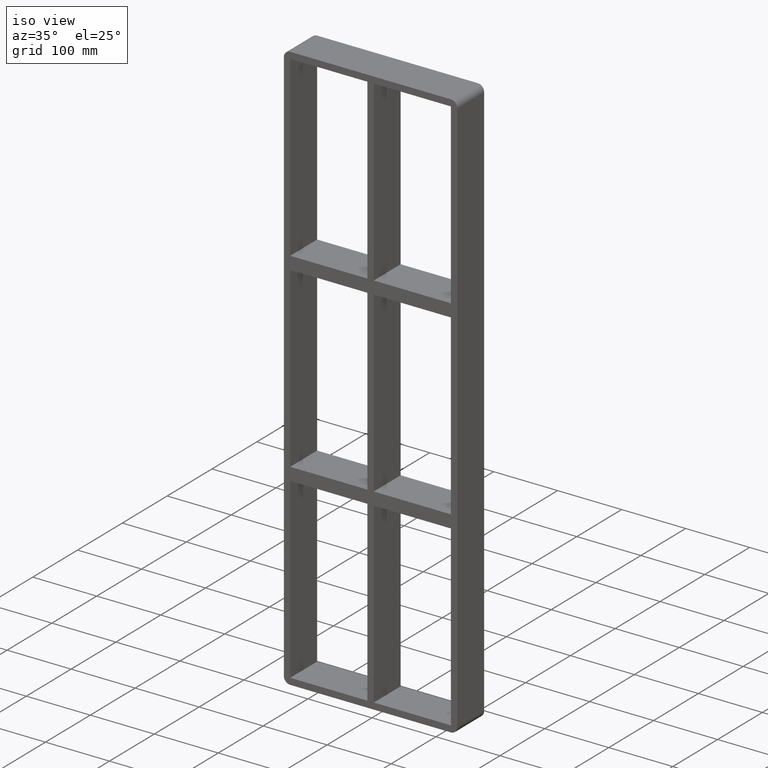
[diagram: clean part render]
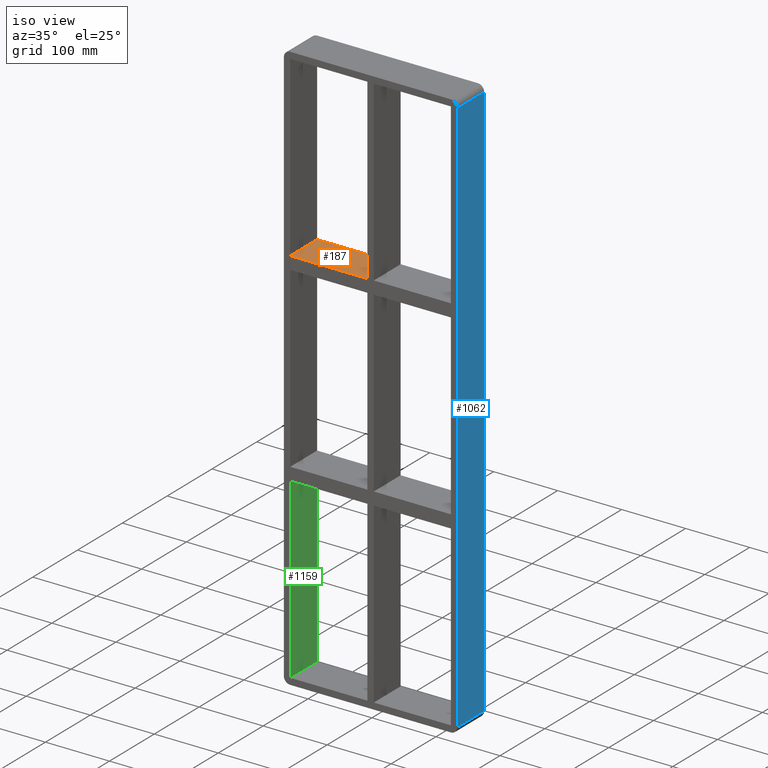
[diagram: same view with three faces highlighted in distinct colors, each labeled with its STEP entity id]
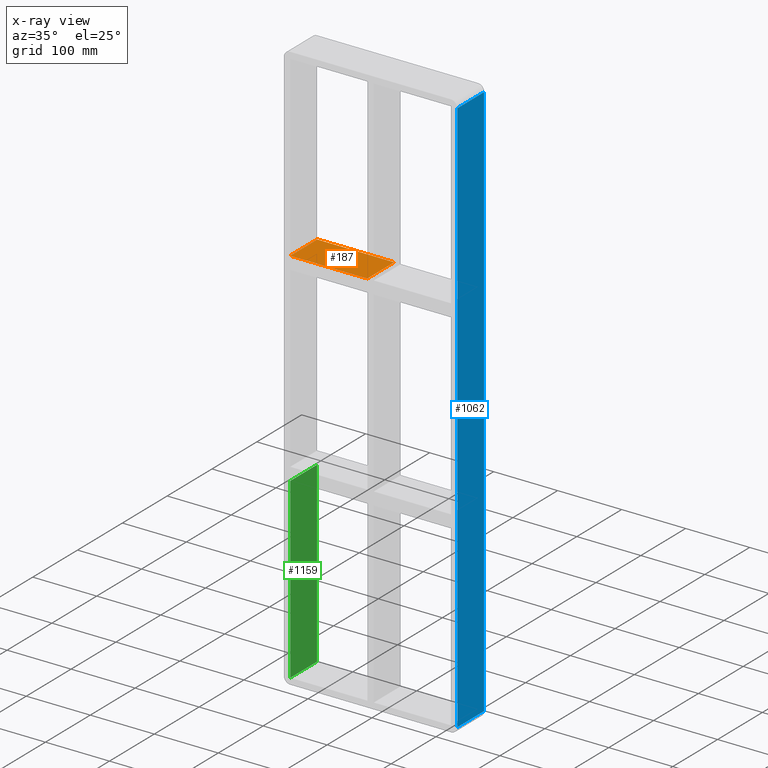
[diagram: x-ray of the same camera — body ghosted, the three highlighted faces saturated]
A machine part, iso view with three faces highlighted in distinct colors.
The next image is the same camera in x-ray (body ghosted, the three faces saturated) — at least one of them is partly hidden behind the body in this view.
Their STEP definitions:

[orange] entity #187 — the highlighted planar face has unit normal (0, 0, 1).
#148=CARTESIAN_POINT('',(-125.49999999999969,-3.0,158.99999999999994));
#149=DIRECTION('',(0.0,0.0,1.0));
#150=DIRECTION('',(1.0,0.0,0.0));
#151=AXIS2_PLACEMENT_3D('',#148,#149,#150);
#152=PLANE('',#151);
#153=CARTESIAN_POINT('',(-5.000000000001352,57.0,158.99999999999991));
#154=VERTEX_POINT('',#153);
#155=CARTESIAN_POINT('',(-5.00000000000135,-3.0,158.99999999999994));
#156=VERTEX_POINT('',#155);
#157=CARTESIAN_POINT('',(-5.00000000000135,57.0,158.99999999999994));
#158=DIRECTION('',(0.0,-1.0,0.0));
#159=VECTOR('',#158,60.0);
#160=LINE('',#157,#159);
#161=EDGE_CURVE('',#154,#156,#160,.T.);
#162=ORIENTED_EDGE('',*,*,#161,.F.);
#163=CARTESIAN_POINT('',(-125.49999999999969,57.0,158.99999999999994));
#164=VERTEX_POINT('',#163);
#165=CARTESIAN_POINT('',(-125.49999999999969,57.0,158.99999999999994));
#166=DIRECTION('',(1.0,0.0,0.0));
#167=VECTOR('',#166,120.49999999999834);
#168=LINE('',#165,#167);
#169=EDGE_CURVE('',#164,#154,#168,.T.);
#170=ORIENTED_EDGE('',*,*,#169,.F.);
#171=CARTESIAN_POINT('',(-125.49999999999969,-3.0,158.99999999999994));
#172=VERTEX_POINT('',#171);
#173=CARTESIAN_POINT('',(-125.5,-3.0,158.99999999999994));
#174=DIRECTION('',(0.0,1.0,0.0));
#175=VECTOR('',#174,60.000000000000007);
#176=LINE('',#173,#175);
#177=EDGE_CURVE('',#172,#164,#176,.T.);
#178=ORIENTED_EDGE('',*,*,#177,.F.);
#179=CARTESIAN_POINT('',(-125.49999999999969,-3.0,158.99999999999994));
#180=DIRECTION('',(1.0,0.0,0.0));
#181=VECTOR('',#180,120.49999999999834);
#182=LINE('',#179,#181);
#183=EDGE_CURVE('',#172,#156,#182,.T.);
#184=ORIENTED_EDGE('',*,*,#183,.T.);
#185=EDGE_LOOP('',(#162,#170,#178,#184));
#186=FACE_OUTER_BOUND('',#185,.T.);
#187=ADVANCED_FACE('',(#186),#152,.T.);

[blue] entity #1062 — the highlighted planar face has unit normal (1, 0, 0).
#616=CARTESIAN_POINT('',(135.5,57.0,-437.0));
#617=VERTEX_POINT('',#616);
#667=CARTESIAN_POINT('',(135.5,57.0,437.0));
#668=VERTEX_POINT('',#667);
#676=CARTESIAN_POINT('',(135.5,57.0,437.0));
#677=DIRECTION('',(0.0,0.0,-1.0));
#678=VECTOR('',#677,874.0);
#679=LINE('',#676,#678);
#680=EDGE_CURVE('',#668,#617,#679,.T.);
#913=CARTESIAN_POINT('',(135.5,-3.0,-437.0));
#914=VERTEX_POINT('',#913);
#915=CARTESIAN_POINT('',(135.5,57.0,-437.0));
#916=DIRECTION('',(0.0,-1.0,0.0));
#917=VECTOR('',#916,60.0);
#918=LINE('',#915,#917);
#919=EDGE_CURVE('',#617,#914,#918,.T.);
#945=CARTESIAN_POINT('',(135.5,-3.0,437.0));
#946=VERTEX_POINT('',#945);
#947=CARTESIAN_POINT('',(135.5,-3.0,-437.0));
#948=DIRECTION('',(0.0,0.0,1.0));
#949=VECTOR('',#948,874.0);
#950=LINE('',#947,#949);
#951=EDGE_CURVE('',#914,#946,#950,.T.);
#1046=CARTESIAN_POINT('',(135.5,0.0,447.0));
#1047=DIRECTION('',(1.0,0.0,0.0));
#1048=DIRECTION('',(0.0,0.0,-1.0));
#1049=AXIS2_PLACEMENT_3D('',#1046,#1047,#1048);
#1050=PLANE('',#1049);
#1051=ORIENTED_EDGE('',*,*,#919,.F.);
#1052=ORIENTED_EDGE('',*,*,#680,.F.);
#1053=CARTESIAN_POINT('',(135.5,-3.0,437.0));
#1054=DIRECTION('',(0.0,1.0,0.0));
#1055=VECTOR('',#1054,60.0);
#1056=LINE('',#1053,#1055);
#1057=EDGE_CURVE('',#946,#668,#1056,.T.);
#1058=ORIENTED_EDGE('',*,*,#1057,.F.);
#1059=ORIENTED_EDGE('',*,*,#951,.F.);
#1060=EDGE_LOOP('',(#1051,#1052,#1058,#1059));
#1061=FACE_OUTER_BOUND('',#1060,.T.);
#1062=ADVANCED_FACE('',(#1061),#1050,.T.);

[green] entity #1159 — the highlighted planar face has unit normal (-1, 0, 0).
#469=CARTESIAN_POINT('',(-125.49999999999967,-3.0,-159.00000000000944));
#470=VERTEX_POINT('',#469);
#477=CARTESIAN_POINT('',(-125.49999999999967,57.0,-159.00000000000944));
#478=VERTEX_POINT('',#477);
#479=CARTESIAN_POINT('',(-125.5,57.000000000000007,-159.00000000000946));
#480=DIRECTION('',(0.0,-1.0,0.0));
#481=VECTOR('',#480,60.000000000000007);
#482=LINE('',#479,#481);
#483=EDGE_CURVE('',#478,#470,#482,.T.);
#723=CARTESIAN_POINT('',(-125.5,57.0,-437.0));
#724=VERTEX_POINT('',#723);
#725=CARTESIAN_POINT('',(-125.5,57.0,-159.00000000000944));
#726=DIRECTION('',(0.0,0.0,-1.0));
#727=VECTOR('',#726,277.99999999999056);
#728=LINE('',#725,#727);
#729=EDGE_CURVE('',#478,#724,#728,.T.);
#839=CARTESIAN_POINT('',(-125.5,-3.0,-437.0));
#840=VERTEX_POINT('',#839);
#841=CARTESIAN_POINT('',(-125.5,-3.0,-437.0));
#842=DIRECTION('',(0.0,1.0,0.0));
#843=VECTOR('',#842,60.0);
#844=LINE('',#841,#843);
#845=EDGE_CURVE('',#840,#724,#844,.T.);
#1037=CARTESIAN_POINT('',(-125.5,-3.0,-437.0));
#1038=DIRECTION('',(0.0,0.0,1.0));
#1039=VECTOR('',#1038,277.99999999999056);
#1040=LINE('',#1037,#1039);
#1041=EDGE_CURVE('',#840,#470,#1040,.T.);
#1148=CARTESIAN_POINT('',(-125.5,0.0,-437.0));
#1149=DIRECTION('',(-1.0,0.0,0.0));
#1150=DIRECTION('',(0.0,0.0,1.0));
#1151=AXIS2_PLACEMENT_3D('',#1148,#1149,#1150);
#1152=PLANE('',#1151);
#1153=ORIENTED_EDGE('',*,*,#483,.T.);
#1154=ORIENTED_EDGE('',*,*,#1041,.F.);
#1155=ORIENTED_EDGE('',*,*,#845,.T.);
#1156=ORIENTED_EDGE('',*,*,#729,.F.);
#1157=EDGE_LOOP('',(#1153,#1154,#1155,#1156));
#1158=FACE_OUTER_BOUND('',#1157,.T.);
#1159=ADVANCED_FACE('',(#1158),#1152,.F.);